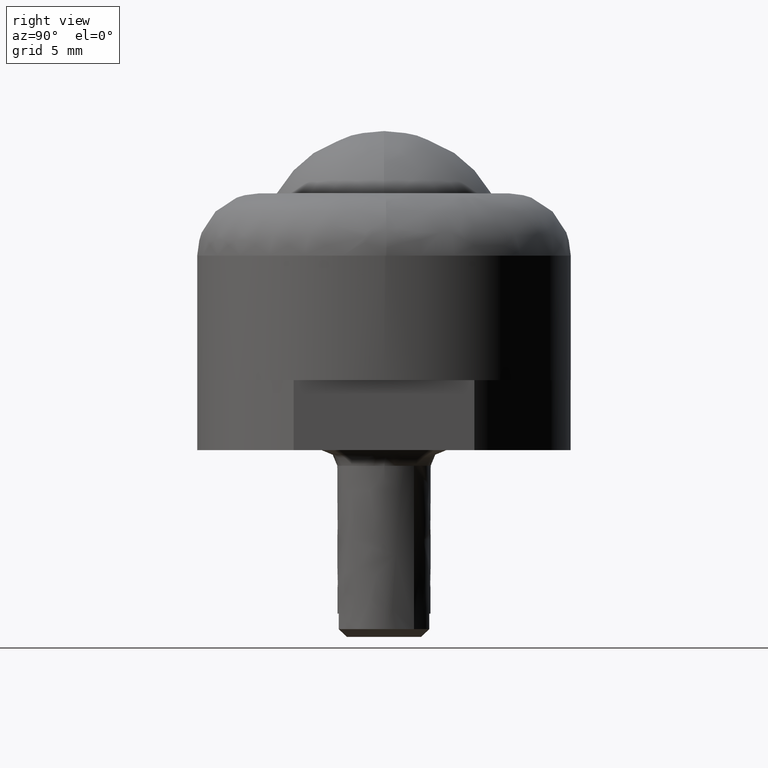
[diagram: clean part render]
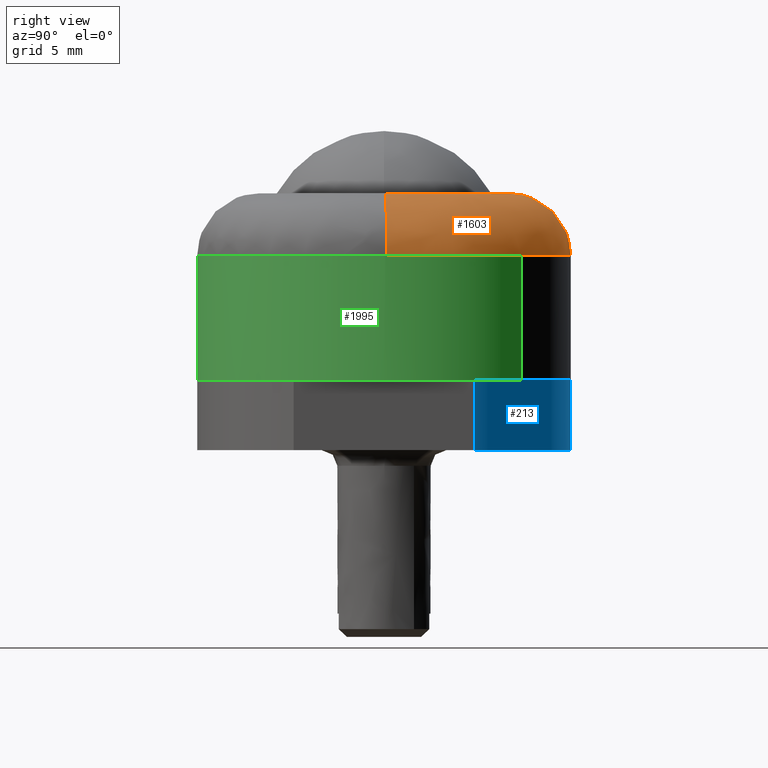
[diagram: same view with three faces highlighted in distinct colors, each labeled with its STEP entity id]
A machine part, right view with three faces highlighted in distinct colors.
Their STEP definitions:

[orange] entity #1603 — the highlighted face is a freeform B-spline surface patch.
#1085=CARTESIAN_POINT('',(-7.999368353892221,-0.100528319144957,12.0));
#1086=VERTEX_POINT('',#1085);
#1087=CARTESIAN_POINT('',(-8.0,0.0,12.0));
#1088=VERTEX_POINT('',#1087);
#1089=CARTESIAN_POINT('',(-7.999368353892221,-0.100528319144957,12.0));
#1090=CARTESIAN_POINT('',(-8.0,0.0,12.0));
#1091=QUASI_UNIFORM_CURVE('',1,(#1089,#1090),.UNSPECIFIED.,.F.,.U.);
#1092=EDGE_CURVE('',#1086,#1088,#1091,.T.);
#1129=CARTESIAN_POINT('',(7.999368353892221,0.100528319144954,12.0));
#1130=VERTEX_POINT('',#1129);
#1136=CARTESIAN_POINT('',(-0.050254546495752,7.999842153478387,12.0));
#1137=VERTEX_POINT('',#1136);
#1138=CARTESIAN_POINT('',(-0.050254546495752,7.999842153478387,12.0));
#1139=CARTESIAN_POINT('',(0.552725265347979,8.003737725940663,12.000000000000011));
#1140=CARTESIAN_POINT('',(1.645341797727045,7.886451184850254,12.0));
#1141=CARTESIAN_POINT('',(3.203138997804838,7.384857147910049,12.000000000000060));
#1142=CARTESIAN_POINT('',(4.537073634139966,6.649182130373442,11.999999999999870));
#1143=CARTESIAN_POINT('',(5.566418681894673,5.788172528518924,12.000000000000171));
#1144=CARTESIAN_POINT('',(6.388714746624632,4.859156229100973,12.000000000000011));
#1145=CARTESIAN_POINT('',(7.110051074094800,3.767783466863614,11.999999999999710));
#1146=CARTESIAN_POINT('',(7.649319051674267,2.483690036617572,12.000000000000210));
#1147=CARTESIAN_POINT('',(7.934964196201919,1.207996199876236,12.000000000000140));
#1148=CARTESIAN_POINT('',(7.994875106357960,0.459033902129113,12.000000000000149));
#1149=CARTESIAN_POINT('',(7.999368353892221,0.100528319144954,12.0));
#1150=B_SPLINE_CURVE_WITH_KNOTS('',3,(#1138,#1139,#1140,#1141,#1142,#1143,#1144,#1145,#1146,#1147,#1148,#1149),.UNSPECIFIED.,.F.,.U.,(4,1,1,1,1,1,1,1,1,4),(0.000000031678704,1.808964911373735,3.275702516557709,4.889115076060451,6.355827813000968,7.284762229358392,8.604823120955924,10.267126596897491,11.440511027028640,12.516114003925789),.UNSPECIFIED.);
#1151=EDGE_CURVE('',#1137,#1130,#1150,.T.);
#1153=CARTESIAN_POINT('',(-8.0,0.0,12.0));
#1154=CARTESIAN_POINT('',(-8.000004948172942,0.325935060617274,12.000000000000011));
#1155=CARTESIAN_POINT('',(-7.956122537105787,1.043001322441303,12.000000000000011));
#1156=CARTESIAN_POINT('',(-7.711694270658398,2.277288822194522,11.999999999999980));
#1157=CARTESIAN_POINT('',(-7.196713438693964,3.606058984561214,12.000000000000060));
#1158=CARTESIAN_POINT('',(-6.498731325746737,4.713746901342297,12.000000000000041));
#1159=CARTESIAN_POINT('',(-5.768259390871919,5.570666490217350,11.999999999999860));
#1160=CARTESIAN_POINT('',(-4.940409090520816,6.335440509424931,11.999999999999870));
#1161=CARTESIAN_POINT('',(-3.959244046307706,6.987922201108036,12.000000000000490));
#1162=CARTESIAN_POINT('',(-2.863039844056806,7.496052312368727,11.999999999999710));
#1163=CARTESIAN_POINT('',(-1.614017375898871,7.881948221844059,12.000000000000339));
#1164=CARTESIAN_POINT('',(-0.636944361807517,7.996263171068017,11.999999999999661));
#1165=CARTESIAN_POINT('',(-0.050254546495752,7.999842153478387,12.0));
#1166=B_SPLINE_CURVE_WITH_KNOTS('',3,(#1153,#1154,#1155,#1156,#1157,#1158,#1159,#1160,#1161,#1162,#1163,#1164,#1165),.UNSPECIFIED.,.F.,.U.,(4,1,1,1,1,1,1,1,1,1,4),(0.000000031692096,0.977808061160173,2.151207938854288,3.764622505710777,5.231362534561422,6.062521637465973,7.138093028569014,8.604837703350157,9.582666511149679,10.756059049839211,12.516135214714669),.UNSPECIFIED.);
#1167=EDGE_CURVE('',#1088,#1137,#1166,.T.);
#1488=CARTESIAN_POINT('',(-7.718529196598320,-0.312893830543620,11.990317465230834));
#1489=CARTESIAN_POINT('',(-7.719877661868584,-0.205592022366045,11.990317465230838));
#1490=CARTESIAN_POINT('',(-7.818275020700975,7.624208830083408,11.990317465230840));
#1491=CARTESIAN_POINT('',(-0.097033095308785,7.721241925392193,11.990317465230842));
#1492=CARTESIAN_POINT('',(7.624208830083405,7.818275020700975,11.990317465230840));
#1493=CARTESIAN_POINT('',(7.722606188915345,-0.011525831712139,11.990317465230836));
#1494=CARTESIAN_POINT('',(7.723954654185163,-0.118827639854217,11.990317465230834));
#1495=CARTESIAN_POINT('',(-12.304852055976754,-0.498814242454885,12.310148516315829));
#1496=CARTESIAN_POINT('',(-12.307001774560517,-0.327754077838840,12.310148516315831));
#1497=CARTESIAN_POINT('',(-12.463866497397222,12.154486859930980,12.310148516315826));
#1498=CARTESIAN_POINT('',(-0.154689818733120,12.309176678664105,12.310148516315829));
#1499=CARTESIAN_POINT('',(12.154486859930980,12.463866497397225,12.310148516315826));
#1500=CARTESIAN_POINT('',(12.311351582766967,-0.018374440314673,12.310148516315831));
#1501=CARTESIAN_POINT('',(12.313501301350017,-0.189434604874128,12.310148516315829));
#1502=CARTESIAN_POINT('',(-11.985158488188402,-0.485854500711660,7.721851499298784));
#1503=CARTESIAN_POINT('',(-11.987252354722848,-0.319238667005388,7.721851499298785));
#1504=CARTESIAN_POINT('',(-12.140041559814556,11.838699945044786,7.721851499298786));
#1505=CARTESIAN_POINT('',(-0.150670807384885,11.989370752429672,7.721851499298785));
#1506=CARTESIAN_POINT('',(11.838699945044786,12.140041559814556,7.721851499298786));
#1507=CARTESIAN_POINT('',(11.991489150135783,-0.017897052179197,7.721851499298784));
#1508=CARTESIAN_POINT('',(11.993583016669541,-0.184512885830349,7.721851499298784));
#1516=(BOUNDED_SURFACE()B_SPLINE_SURFACE(2,2,((#1488,#1495,#1502),(#1489,#1496,#1503),(#1490,#1497,#1504),(#1491,#1498,#1505),(#1492,#1499,#1506),(#1493,#1500,#1507),(#1494,#1501,#1508)),.UNSPECIFIED.,.F.,.F.,.U.)B_SPLINE_SURFACE_WITH_KNOTS((3,1,2,1,3),(3,3),(0.0,0.397324168776849,20.263532600983531,40.129741033190207,40.527065201833302),(0.0,7.290919857939570),.UNSPECIFIED.)GEOMETRIC_REPRESENTATION_ITEM()RATIONAL_B_SPLINE_SURFACE(((0.927077710676894,0.608371547717838,0.927077722429856),(0.921709902958913,0.604849058231110,0.921709914643825),(0.647951709431553,0.425202094466791,0.647951717645915),(0.916342095240933,0.601326568744382,0.916342106857795),(0.647951709431553,0.425202094466791,0.647951717645915),(0.921709902957106,0.604849058229924,0.921709914642018),(0.927077710673279,0.608371547715467,0.927077722426242)))REPRESENTATION_ITEM('')SURFACE());
#1517=ORIENTED_EDGE('',*,*,#1092,.T.);
#1518=ORIENTED_EDGE('',*,*,#1167,.T.);
#1519=ORIENTED_EDGE('',*,*,#1151,.T.);
#1520=CARTESIAN_POINT('',(11.999052530445770,0.150792478602229,8.000000000008434));
#1521=VERTEX_POINT('',#1520);
#1522=CARTESIAN_POINT('',(7.999368353892221,0.100528319144954,12.0));
#1523=CARTESIAN_POINT('',(8.293867376581307,0.104229297820710,12.000044819670331));
#1524=CARTESIAN_POINT('',(8.899224968991172,0.111836846124532,11.932866931046281));
#1525=CARTESIAN_POINT('',(9.676393560765833,0.121603548773085,11.660139632573321));
#1526=CARTESIAN_POINT('',(10.283956909774290,0.129238816888258,11.300933618466070));
#1527=CARTESIAN_POINT('',(10.755321079863769,0.135162465547812,10.918873698441990));
#1528=CARTESIAN_POINT('',(11.210323712480660,0.140880498239472,10.423025380850239));
#1529=CARTESIAN_POINT('',(11.585076810125960,0.145590032447040,9.823051430720179));
#1530=CARTESIAN_POINT('',(11.909138887935880,0.149662530978383,8.998012751552656));
#1531=CARTESIAN_POINT('',(11.999239065481770,0.150794822797592,8.392724338335698));
#1532=CARTESIAN_POINT('',(11.999052530445770,0.150792478602229,8.000000000008434));
#1533=B_SPLINE_CURVE_WITH_KNOTS('',3,(#1522,#1523,#1524,#1525,#1526,#1527,#1528,#1529,#1530,#1531,#1532),.UNSPECIFIED.,.F.,.U.,(4,1,1,1,1,1,1,1,4),(0.000000040816400,0.883569393693604,1.816245364871986,2.454397427879647,2.994369025584622,3.632477867548823,4.466979859326144,5.105125818600332,6.283224731348765),.UNSPECIFIED.);
#1534=EDGE_CURVE('',#1130,#1521,#1533,.T.);
#1535=ORIENTED_EDGE('',*,*,#1534,.T.);
#1536=CARTESIAN_POINT('',(8.150221698485282,8.807603889000667,8.000000000007432));
#1537=VERTEX_POINT('',#1536);
#1538=CARTESIAN_POINT('',(8.150221698485282,8.807603889000667,8.000000000007432));
#1539=CARTESIAN_POINT('',(8.801865369361032,8.204825464917986,8.000000000007617));
#1540=CARTESIAN_POINT('',(9.669791280472060,7.201123945945855,8.000000000007926));
#1541=CARTESIAN_POINT('',(10.689215365056370,5.532117762592463,8.000000000008168));
#1542=CARTESIAN_POINT('',(11.387087414756390,3.949095236758218,8.000000000008386));
#1543=CARTESIAN_POINT('',(11.872094142913051,2.076837940804471,8.000000000008464));
#1544=CARTESIAN_POINT('',(11.991125508042920,0.784789963237322,8.000000000008466));
#1545=CARTESIAN_POINT('',(11.999052530445770,0.150792478602229,8.000000000008434));
#1546=B_SPLINE_CURVE_WITH_KNOTS('',3,(#1538,#1539,#1540,#1541,#1542,#1543,#1544,#1545),.UNSPECIFIED.,.F.,.U.,(4,1,1,1,1,4),(7.575258E-009,2.662996349377484,3.956450962623886,5.858582637813717,7.836816513291883,9.738953560297475),.UNSPECIFIED.);
#1547=EDGE_CURVE('',#1537,#1521,#1546,.T.);
#1548=ORIENTED_EDGE('',*,*,#1547,.F.);
#1549=CARTESIAN_POINT('',(-0.075392312230118,11.999763164298560,8.000000000004217));
#1550=VERTEX_POINT('',#1549);
#1551=CARTESIAN_POINT('',(-0.075392312230118,11.999763164298560,8.000000000004217));
#1552=CARTESIAN_POINT('',(0.606945064905615,12.004107176607640,8.000000000004516));
#1553=CARTESIAN_POINT('',(1.689824917316242,11.918267759421321,8.000000000004894));
#1554=CARTESIAN_POINT('',(3.439344924174850,11.537533129694671,8.000000000005596));
#1555=CARTESIAN_POINT('',(4.880259916894161,11.007402207335620,8.000000000006157));
#1556=CARTESIAN_POINT('',(6.581637579471519,10.091765505994429,8.000000000006825));
#1557=CARTESIAN_POINT('',(7.563119793204696,9.351033927168137,8.000000000007200));
#1558=CARTESIAN_POINT('',(8.150221698485282,8.807603889000667,8.000000000007432));
#1559=B_SPLINE_CURVE_WITH_KNOTS('',3,(#1551,#1552,#1553,#1554,#1555,#1556,#1557,#1558),.UNSPECIFIED.,.F.,.U.,(4,1,1,1,1,4),(6.993941E-009,2.047042842385026,3.247037002283886,5.364664548865002,6.635245302492525,9.035228061272157),.UNSPECIFIED.);
#1560=EDGE_CURVE('',#1550,#1537,#1559,.T.);
#1561=ORIENTED_EDGE('',*,*,#1560,.F.);
#1562=CARTESIAN_POINT('',(-12.0,0.0,8.0));
#1563=VERTEX_POINT('',#1562);
#1564=CARTESIAN_POINT('',(-12.0,0.0,8.0));
#1565=CARTESIAN_POINT('',(-12.000134444139579,0.855599103846524,7.999999999999993));
#1566=CARTESIAN_POINT('',(-11.837205601930490,2.371165602474332,8.000000000000078));
#1567=CARTESIAN_POINT('',(-11.221038810750169,4.388655098168413,8.000000000000275));
#1568=CARTESIAN_POINT('',(-10.439106518992871,5.998100236856683,8.000000000000524));
#1569=CARTESIAN_POINT('',(-9.590417719545549,7.257959614860657,8.000000000000902));
#1570=CARTESIAN_POINT('',(-8.618477872892175,8.391209589268605,8.000000000001181));
#1571=CARTESIAN_POINT('',(-7.427064565197704,9.485039968059846,8.000000000001633));
#1572=CARTESIAN_POINT('',(-5.776064786290380,10.590365603148561,8.000000000002242));
#1573=CARTESIAN_POINT('',(-3.954049130122555,11.388078217135490,8.000000000002752));
#1574=CARTESIAN_POINT('',(-2.005860106194727,11.880660499667870,8.000000000003762));
#1575=CARTESIAN_POINT('',(-0.759854739861921,11.995519878145529,8.000000000003650));
#1576=CARTESIAN_POINT('',(-0.075392312230118,11.999763164298560,8.000000000004217));
#1577=B_SPLINE_CURVE_WITH_KNOTS('',3,(#1564,#1565,#1566,#1567,#1568,#1569,#1570,#1571,#1572,#1573,#1574,#1575,#1576),.UNSPECIFIED.,.F.,.U.,(4,1,1,1,1,1,1,1,1,1,4),(0.000000027637252,2.566773993769193,4.546874344310620,6.306958473408317,7.920376397605272,9.093756888702433,10.780477882935720,12.760577399850069,15.034021809068969,16.720769352811089,18.774192329410621),.UNSPECIFIED.);
#1578=EDGE_CURVE('',#1563,#1550,#1577,.T.);
#1579=ORIENTED_EDGE('',*,*,#1578,.F.);
#1580=CARTESIAN_POINT('',(-11.999052530445770,-0.150792478602229,8.000000000008434));
#1581=VERTEX_POINT('',#1580);
#1582=CARTESIAN_POINT('',(-11.999052530445770,-0.150792478602229,8.000000000008434));
#1583=CARTESIAN_POINT('',(-12.0,0.0,8.0));
#1584=QUASI_UNIFORM_CURVE('',1,(#1582,#1583),.UNSPECIFIED.,.F.,.U.);
#1585=EDGE_CURVE('',#1581,#1563,#1584,.T.);
#1586=ORIENTED_EDGE('',*,*,#1585,.F.);
#1587=CARTESIAN_POINT('',(-7.999368353892221,-0.100528319144957,12.0));
#1588=CARTESIAN_POINT('',(-8.293873071812607,-0.104229369392868,12.000061043505360));
#1589=CARTESIAN_POINT('',(-8.735594835917507,-0.109780500987500,11.950969339753810));
#1590=CARTESIAN_POINT('',(-9.366208439216955,-0.117705442390234,11.772250477943880));
#1591=CARTESIAN_POINT('',(-10.013252004099011,-0.125836859646872,11.490282139504419));
#1592=CARTESIAN_POINT('',(-10.644392822510889,-0.133768426576382,11.039882365443820));
#1593=CARTESIAN_POINT('',(-11.210314917557280,-0.140880387713389,10.423014256801221));
#1594=CARTESIAN_POINT('',(-11.585077720070339,-0.145590043882342,9.823052277347342));
#1595=CARTESIAN_POINT('',(-11.909138415425250,-0.149662525040328,8.998012311419405));
#1596=CARTESIAN_POINT('',(-11.999239230117549,-0.150794824866577,8.392724491944193));
#1597=CARTESIAN_POINT('',(-11.999052530445770,-0.150792478602229,8.000000000008434));
#1598=B_SPLINE_CURVE_WITH_KNOTS('',3,(#1587,#1588,#1589,#1590,#1591,#1592,#1593,#1594,#1595,#1596,#1597),.UNSPECIFIED.,.F.,.U.,(4,1,1,1,1,1,1,1,4),(0.000000040816566,0.883569393693604,1.325366547950353,1.963513288000132,2.994369025584622,3.632477867548823,4.466979859326144,5.105125818600332,6.283224731348765),.UNSPECIFIED.);
#1599=EDGE_CURVE('',#1086,#1581,#1598,.T.);
#1600=ORIENTED_EDGE('',*,*,#1599,.F.);
#1601=EDGE_LOOP('',(#1517,#1518,#1519,#1535,#1548,#1561,#1579,#1586,#1600));
#1602=FACE_OUTER_BOUND('',#1601,.T.);
#1603=ADVANCED_FACE('',(#1602),#1516,.T.);

[blue] entity #213 — the highlighted face is a freeform B-spline surface patch.
#10=CARTESIAN_POINT('',(-10.500000000000000,5.809475019311110,0.0));
#11=VERTEX_POINT('',#10);
#12=CARTESIAN_POINT('',(10.500000000000000,5.809475019311150,0.0));
#13=VERTEX_POINT('',#12);
#14=CARTESIAN_POINT('',(-10.500000000000000,5.809475019311110,0.0));
#15=CARTESIAN_POINT('',(-10.209891866521589,6.333882347705153,0.0));
#16=CARTESIAN_POINT('',(-9.605777958105820,7.255310497847886,0.0));
#17=CARTESIAN_POINT('',(-8.574735666877446,8.436536971816693,0.0));
#18=CARTESIAN_POINT('',(-7.434063438216991,9.462474222188257,0.0));
#19=CARTESIAN_POINT('',(-6.114898151966409,10.371725192057090,0.0));
#20=CARTESIAN_POINT('',(-4.680667959750983,11.085809693708059,0.0));
#21=CARTESIAN_POINT('',(-3.325303309309611,11.554494256123760,0.0));
#22=CARTESIAN_POINT('',(-1.797900846446788,11.903727515335250,0.0));
#23=CARTESIAN_POINT('',(-0.199774788384279,12.043740234641700,0.0));
#24=CARTESIAN_POINT('',(1.731336934046038,11.923038962506309,0.0));
#25=CARTESIAN_POINT('',(3.625316272608648,11.506668311562040,0.0));
#26=CARTESIAN_POINT('',(5.445085802727597,10.747134679412611,0.0));
#27=CARTESIAN_POINT('',(7.010314481782009,9.788819024922605,0.0));
#28=CARTESIAN_POINT('',(8.193990404904124,8.810152229362334,0.0));
#29=CARTESIAN_POINT('',(9.427722369476099,7.499224327386478,0.0));
#30=CARTESIAN_POINT('',(10.113244700389069,6.508732446286602,0.0));
#31=CARTESIAN_POINT('',(10.500000000000000,5.809475019311150,0.0));
#32=B_SPLINE_CURVE_WITH_KNOTS('',3,(#14,#15,#16,#17,#18,#19,#20,#21,#22,#23,#24,#25,#26,#27,#28,#29,#30,#31),.UNSPECIFIED.,.F.,.U.,(4,1,1,1,1,1,1,1,1,1,1,1,1,1,1,4),(8.897835E-009,1.797912602711968,3.296186892936774,4.694584629038069,6.392633846683260,8.090678238406341,9.489080168373040,10.687689903769240,12.785267025864950,14.283531010625399,16.481004867715448,18.578590696181990,20.176752487453491,21.974690458298308,23.173300524347361,25.570533412326530),.UNSPECIFIED.);
#33=EDGE_CURVE('',#11,#13,#32,.T.);
#79=CARTESIAN_POINT('',(-10.500000000000000,5.809475019311110,-4.499999999999949));
#80=VERTEX_POINT('',#79);
#94=CARTESIAN_POINT('',(-10.500000000000000,5.809475019311110,0.0));
#95=CARTESIAN_POINT('',(-10.500000000000000,5.809475019311110,-4.499999999999949));
#96=QUASI_UNIFORM_CURVE('',1,(#94,#95),.UNSPECIFIED.,.F.,.U.);
#97=EDGE_CURVE('',#11,#80,#96,.T.);
#155=CARTESIAN_POINT('',(10.500000000000000,5.809475019311150,-4.499999999999949));
#156=VERTEX_POINT('',#155);
#162=CARTESIAN_POINT('',(10.500000000000000,5.809475019311150,0.0));
#163=CARTESIAN_POINT('',(10.500000000000000,5.809475019311150,-4.499999999999949));
#164=QUASI_UNIFORM_CURVE('',1,(#162,#163),.UNSPECIFIED.,.F.,.U.);
#165=EDGE_CURVE('',#13,#156,#164,.T.);
#172=CARTESIAN_POINT('',(10.735005993270430,5.362802096334286,0.112499999999999));
#173=CARTESIAN_POINT('',(10.735005993270430,5.362802096334286,-4.615312499999948));
#174=CARTESIAN_POINT('',(-0.508342414975918,27.869210197698635,0.112499999999999));
#175=CARTESIAN_POINT('',(-0.508342414975918,27.869210197698635,-4.615312499999948));
#176=CARTESIAN_POINT('',(-10.923438160866510,4.967745841498481,0.112499999999999));
#177=CARTESIAN_POINT('',(-10.923438160866510,4.967745841498481,-4.615312499999948));
#185=(BOUNDED_SURFACE()B_SPLINE_SURFACE(1,2,((#172,#174,#176),(#173,#175,#177)),.UNSPECIFIED.,.F.,.F.,.U.)B_SPLINE_SURFACE_WITH_KNOTS((2,2),(3,3),(0.0,4.727812499999947),(0.0,30.285744546446690),.UNSPECIFIED.)GEOMETRIC_REPRESENTATION_ITEM()RATIONAL_B_SPLINE_SURFACE(((1.0,0.430511096808295,1.0),(1.0,0.430511096808295,1.0)))REPRESENTATION_ITEM('')SURFACE());
#186=CARTESIAN_POINT('',(-10.500000000000000,5.809475019311110,-4.499999999999949));
#187=CARTESIAN_POINT('',(-10.209891868691580,6.333882352228954,-4.499999999999949));
#188=CARTESIAN_POINT('',(-9.605777944512733,7.255310469505210,-4.499999999999951));
#189=CARTESIAN_POINT('',(-8.574735707625033,8.436537060031220,-4.499999999999948));
#190=CARTESIAN_POINT('',(-7.434063319020019,9.462473951070864,-4.499999999999963));
#191=CARTESIAN_POINT('',(-6.114898456270278,10.371725912808380,-4.499999999999920));
#192=CARTESIAN_POINT('',(-4.680667396424663,11.085808602596350,-4.500000000000016));
#193=CARTESIAN_POINT('',(-3.325304872285918,11.554505568050651,-4.499999999999830));
#194=CARTESIAN_POINT('',(-2.057877435176815,11.844239126435101,-4.500000000000173));
#195=CARTESIAN_POINT('',(-0.833143874284101,11.992776339891220,-4.499999999999695));
#196=CARTESIAN_POINT('',(0.633451308731627,12.017222630824570,-4.500000000000363));
#197=CARTESIAN_POINT('',(2.126921809187940,11.848697464337430,-4.499999999999730));
#198=CARTESIAN_POINT('',(3.872054284301777,11.403633392725670,-4.500000000000074));
#199=CARTESIAN_POINT('',(5.445087277595493,10.747143966663151,-4.499999999999779));
#200=CARTESIAN_POINT('',(7.010314338339438,9.788818207950785,-4.500000000000004));
#201=CARTESIAN_POINT('',(8.193990405079218,8.810152231477940,-4.499999999999934));
#202=CARTESIAN_POINT('',(9.427722369384579,7.499224326280670,-4.499999999999961));
#203=CARTESIAN_POINT('',(10.113244700419550,6.508732446654804,-4.499999999999949));
#204=CARTESIAN_POINT('',(10.500000000000000,5.809475019311150,-4.499999999999949));
#205=B_SPLINE_CURVE_WITH_KNOTS('',3,(#186,#187,#188,#189,#190,#191,#192,#193,#194,#195,#196,#197,#198,#199,#200,#201,#202,#203,#204),.UNSPECIFIED.,.F.,.U.,(4,1,1,1,1,1,1,1,1,1,1,1,1,1,1,1,4),(8.897835E-009,1.797912602711968,3.296186892936774,4.694584629038069,6.392633846683260,8.090678238406341,9.489080168373040,10.687689903769240,11.986194627532001,13.184805067821051,15.082602067928160,16.481004867715448,18.578590696181990,20.176752487453491,21.974690458298308,23.173300524347361,25.570533412326530),.UNSPECIFIED.);
#206=EDGE_CURVE('',#80,#156,#205,.T.);
#207=ORIENTED_EDGE('',*,*,#206,.F.);
#208=ORIENTED_EDGE('',*,*,#97,.F.);
#209=ORIENTED_EDGE('',*,*,#33,.T.);
#210=ORIENTED_EDGE('',*,*,#165,.T.);
#211=EDGE_LOOP('',(#207,#208,#209,#210));
#212=FACE_OUTER_BOUND('',#211,.T.);
#213=ADVANCED_FACE('',(#212),#185,.T.);

[green] entity #1995 — the highlighted face is a freeform B-spline surface patch.
#1520=CARTESIAN_POINT('',(11.999052530445770,0.150792478602229,8.000000000008434));
#1521=VERTEX_POINT('',#1520);
#1536=CARTESIAN_POINT('',(8.150221698485282,8.807603889000667,8.000000000007432));
#1537=VERTEX_POINT('',#1536);
#1538=CARTESIAN_POINT('',(8.150221698485282,8.807603889000667,8.000000000007432));
#1539=CARTESIAN_POINT('',(8.801865369361032,8.204825464917986,8.000000000007617));
#1540=CARTESIAN_POINT('',(9.669791280472060,7.201123945945855,8.000000000007926));
#1541=CARTESIAN_POINT('',(10.689215365056370,5.532117762592463,8.000000000008168));
#1542=CARTESIAN_POINT('',(11.387087414756390,3.949095236758218,8.000000000008386));
#1543=CARTESIAN_POINT('',(11.872094142913051,2.076837940804471,8.000000000008464));
#1544=CARTESIAN_POINT('',(11.991125508042920,0.784789963237322,8.000000000008466));
#1545=CARTESIAN_POINT('',(11.999052530445770,0.150792478602229,8.000000000008434));
#1546=B_SPLINE_CURVE_WITH_KNOTS('',3,(#1538,#1539,#1540,#1541,#1542,#1543,#1544,#1545),.UNSPECIFIED.,.F.,.U.,(4,1,1,1,1,4),(7.575258E-009,2.662996349377484,3.956450962623886,5.858582637813717,7.836816513291883,9.738953560297475),.UNSPECIFIED.);
#1547=EDGE_CURVE('',#1537,#1521,#1546,.T.);
#1636=CARTESIAN_POINT('',(-8.150221698485282,-8.807603889000667,8.000000000007432));
#1637=VERTEX_POINT('',#1636);
#1650=CARTESIAN_POINT('',(0.075392312230105,-11.999763164298560,8.000000000004217));
#1651=VERTEX_POINT('',#1650);
#1652=CARTESIAN_POINT('',(0.075392312230105,-11.999763164298560,8.000000000004217));
#1653=CARTESIAN_POINT('',(-0.795186090195909,-12.005392381805660,8.000000000004569));
#1654=CARTESIAN_POINT('',(-2.184264944137027,-11.862189072661710,8.000000000005121));
#1655=CARTESIAN_POINT('',(-3.976429487211712,-11.354418349579531,8.000000000005787));
#1656=CARTESIAN_POINT('',(-5.300924261185770,-10.795058950787450,8.000000000006295));
#1657=CARTESIAN_POINT('',(-6.716627360257607,-9.995167549242201,8.000000000006965));
#1658=CARTESIAN_POINT('',(-7.632177275868338,-9.287081681087750,8.000000000007153));
#1659=CARTESIAN_POINT('',(-8.150221698485282,-8.807603889000667,8.000000000007432));
#1660=B_SPLINE_CURVE_WITH_KNOTS('',3,(#1652,#1653,#1654,#1655,#1656,#1657,#1658,#1659),.UNSPECIFIED.,.F.,.U.,(4,1,1,1,1,4),(6.991010E-009,2.611746431075273,4.164683928651727,5.576427737897463,6.917596792911516,9.035228061272170),.UNSPECIFIED.);
#1661=EDGE_CURVE('',#1651,#1637,#1660,.T.);
#1663=CARTESIAN_POINT('',(12.0,0.0,8.0));
#1664=VERTEX_POINT('',#1663);
#1665=CARTESIAN_POINT('',(12.0,0.0,8.0));
#1666=CARTESIAN_POINT('',(12.000013210793661,-0.562243867192814,7.999999999999968));
#1667=CARTESIAN_POINT('',(11.908832652178830,-1.857864964773630,8.000000000000073));
#1668=CARTESIAN_POINT('',(11.490767756394240,-3.625675988771066,8.000000000000140));
#1669=CARTESIAN_POINT('',(10.860366915811380,-5.167516649197017,8.000000000000478));
#1670=CARTESIAN_POINT('',(10.162663360188890,-6.432044139439327,8.000000000000600));
#1671=CARTESIAN_POINT('',(9.208690035091976,-7.767537825316636,8.000000000001016));
#1672=CARTESIAN_POINT('',(7.871901986039660,-9.137699783604202,8.000000000001498));
#1673=CARTESIAN_POINT('',(6.258510747329856,-10.298092687694529,8.000000000001984));
#1674=CARTESIAN_POINT('',(4.680767337890022,-11.088872803744950,8.000000000002691));
#1675=CARTESIAN_POINT('',(3.267495606283610,-11.573235337925411,8.000000000002904));
#1676=CARTESIAN_POINT('',(1.761553637574743,-11.905443538995090,8.000000000003947));
#1677=CARTESIAN_POINT('',(0.710962822248221,-11.995817576426161,8.000000000003579));
#1678=CARTESIAN_POINT('',(0.075392312230105,-11.999763164298560,8.000000000004217));
#1679=B_SPLINE_CURVE_WITH_KNOTS('',3,(#1665,#1666,#1667,#1668,#1669,#1670,#1671,#1672,#1673,#1674,#1675,#1676,#1677,#1678),.UNSPECIFIED.,.F.,.U.,(4,1,1,1,1,1,1,1,1,1,1,4),(0.000000027643509,1.686738589220088,3.886844239705173,5.426918062563269,6.673647725926747,8.213725566872110,10.340458199293030,12.393900028449981,14.153981193662190,15.620721926771051,16.867451769288930,18.774192329410631),.UNSPECIFIED.);
#1680=EDGE_CURVE('',#1664,#1651,#1679,.T.);
#1682=CARTESIAN_POINT('',(11.999052530445770,0.150792478602229,8.000000000008434));
#1683=CARTESIAN_POINT('',(12.0,0.0,8.0));
#1684=QUASI_UNIFORM_CURVE('',1,(#1682,#1683),.UNSPECIFIED.,.F.,.U.);
#1685=EDGE_CURVE('',#1521,#1664,#1684,.T.);
#1865=CARTESIAN_POINT('',(8.150221790466301,8.807603948089806,-2.220446E-016));
#1866=VERTEX_POINT('',#1865);
#1867=CARTESIAN_POINT('',(8.150221698485282,8.807603889000667,8.000000000007432));
#1868=CARTESIAN_POINT('',(8.150221790466301,8.807603948089806,-2.220446E-016));
#1869=QUASI_UNIFORM_CURVE('',1,(#1867,#1868),.UNSPECIFIED.,.F.,.U.);
#1870=EDGE_CURVE('',#1537,#1866,#1869,.T.);
#1903=CARTESIAN_POINT('',(-8.150221790466237,-8.807603948089739,1.165734E-015));
#1904=VERTEX_POINT('',#1903);
#1917=CARTESIAN_POINT('',(-8.150221698485282,-8.807603889000667,8.000000000007432));
#1918=CARTESIAN_POINT('',(-8.150221790466237,-8.807603948089739,1.165734E-015));
#1919=QUASI_UNIFORM_CURVE('',1,(#1917,#1918),.UNSPECIFIED.,.F.,.U.);
#1920=EDGE_CURVE('',#1637,#1904,#1919,.T.);
#1925=CARTESIAN_POINT('',(8.150221714002585,8.807603874641542,8.200000000008645));
#1926=CARTESIAN_POINT('',(16.957825588644127,0.657382160638956,8.200000000008645));
#1927=CARTESIAN_POINT('',(8.807603874641542,-8.150221714002585,8.200000000008645));
#1928=CARTESIAN_POINT('',(0.657382160638956,-16.957825588644127,8.200000000008645));
#1929=CARTESIAN_POINT('',(-8.150221714002585,-8.807603874641542,8.200000000008645));
#1930=CARTESIAN_POINT('',(8.150221714002585,8.807603874641542,-0.205000000000217));
#1931=CARTESIAN_POINT('',(16.957825588644127,0.657382160638956,-0.205000000000217));
#1932=CARTESIAN_POINT('',(8.807603874641542,-8.150221714002585,-0.205000000000217));
#1933=CARTESIAN_POINT('',(0.657382160638956,-16.957825588644127,-0.205000000000217));
#1934=CARTESIAN_POINT('',(-8.150221714002585,-8.807603874641542,-0.205000000000217));
#1942=(BOUNDED_SURFACE()B_SPLINE_SURFACE(2,1,((#1925,#1930),(#1926,#1931),(#1927,#1932),(#1928,#1933),(#1929,#1934)),.UNSPECIFIED.,.F.,.F.,.U.)B_SPLINE_SURFACE_WITH_KNOTS((3,2,3),(2,2),(0.0,19.882250993908560,39.764501987817120),(0.0,8.405000000008863),.UNSPECIFIED.)GEOMETRIC_REPRESENTATION_ITEM()RATIONAL_B_SPLINE_SURFACE(((1.0,1.0),(0.707106781186548,0.707106781186548),(1.0,1.0),(0.707106781186548,0.707106781186548),(1.0,1.0)))REPRESENTATION_ITEM('')SURFACE());
#1943=ORIENTED_EDGE('',*,*,#1661,.T.);
#1944=ORIENTED_EDGE('',*,*,#1920,.T.);
#1945=CARTESIAN_POINT('',(-0.000000424640475,-11.999999999999989,0.0));
#1946=VERTEX_POINT('',#1945);
#1947=CARTESIAN_POINT('',(-0.000000424640475,-11.999999999999989,0.0));
#1948=CARTESIAN_POINT('',(-0.559989549526593,-12.000021314218021,8.009579E-017));
#1949=CARTESIAN_POINT('',(-1.703296835778723,-11.919835386218990,2.436242E-016));
#1950=CARTESIAN_POINT('',(-3.281096403955418,-11.578743597368661,4.692984E-016));
#1951=CARTESIAN_POINT('',(-4.667217230851025,-11.081897449862270,6.675566E-016));
#1952=CARTESIAN_POINT('',(-5.842543570382786,-10.506894257896640,8.356647E-016));
#1953=CARTESIAN_POINT('',(-7.010529221714192,-9.774647636245117,1.002723E-015));
#1954=CARTESIAN_POINT('',(-7.756349160911050,-9.172109620016737,1.109398E-015));
#1955=CARTESIAN_POINT('',(-8.150221790466237,-8.807603948089739,1.165734E-015));
#1956=B_SPLINE_CURVE_WITH_KNOTS('',3,(#1947,#1948,#1949,#1950,#1951,#1952,#1953,#1954,#1955),.UNSPECIFIED.,.F.,.U.,(4,1,1,1,1,1,4),(6.703901E-009,1.679967761122057,3.429938700901970,4.829902549299511,6.089884591695366,7.349867269552805,8.959834571931850),.UNSPECIFIED.);
#1957=EDGE_CURVE('',#1946,#1904,#1956,.T.);
#1958=ORIENTED_EDGE('',*,*,#1957,.F.);
#1959=CARTESIAN_POINT('',(12.0,0.0,0.0));
#1960=VERTEX_POINT('',#1959);
#1961=CARTESIAN_POINT('',(12.0,0.0,0.0));
#1962=CARTESIAN_POINT('',(12.000196957817240,-0.908134058049139,0.0));
#1963=CARTESIAN_POINT('',(11.823583459964579,-2.454295356356978,0.0));
#1964=CARTESIAN_POINT('',(11.132056040644240,-4.637227458868311,0.0));
#1965=CARTESIAN_POINT('',(10.280702820225420,-6.278096103959096,0.0));
#1966=CARTESIAN_POINT('',(9.181467014905289,-7.789049708862530,0.0));
#1967=CARTESIAN_POINT('',(7.878467044832181,-9.132763289154333,0.0));
#1968=CARTESIAN_POINT('',(6.380250271656077,-10.215626158825170,0.0));
#1969=CARTESIAN_POINT('',(4.940147312092169,-10.962725108674830,0.0));
#1970=CARTESIAN_POINT('',(3.472381579986751,-11.528978274166191,0.0));
#1971=CARTESIAN_POINT('',(1.816230957948852,-11.911546762565560,0.0));
#1972=CARTESIAN_POINT('',(0.564499305697243,-12.000017566900061,0.0));
#1973=CARTESIAN_POINT('',(-0.000000424640475,-11.999999999999989,0.0));
#1974=B_SPLINE_CURVE_WITH_KNOTS('',3,(#1961,#1962,#1963,#1964,#1965,#1966,#1967,#1968,#1969,#1970,#1971,#1972,#1973),.UNSPECIFIED.,.F.,.U.,(4,1,1,1,1,1,1,1,1,1,4),(0.000000028142068,2.724353194175286,4.638765261947237,6.847704532368789,8.246710427877719,10.234728544002220,12.443671401027050,13.769031501472149,15.094395422053200,17.156082070384699,18.849585730355962),.UNSPECIFIED.);
#1975=EDGE_CURVE('',#1960,#1946,#1974,.T.);
#1976=ORIENTED_EDGE('',*,*,#1975,.F.);
#1977=CARTESIAN_POINT('',(8.150221790466301,8.807603948089806,-2.220446E-016));
#1978=CARTESIAN_POINT('',(8.679562158482568,8.317879687554338,-2.096984E-016));
#1979=CARTESIAN_POINT('',(9.493583780166008,7.415371279414775,-1.869456E-016));
#1980=CARTESIAN_POINT('',(10.416485916760530,6.014952712918708,-1.516403E-016));
#1981=CARTESIAN_POINT('',(11.027870261388710,4.791977866790510,-1.208084E-016));
#1982=CARTESIAN_POINT('',(11.501832738279809,3.509985673095974,-8.848870E-017));
#1983=CARTESIAN_POINT('',(11.890541189572410,1.931568129383916,-4.869591E-017));
#1984=CARTESIAN_POINT('',(12.000078009052990,0.721131452726422,-1.818013E-017));
#1985=CARTESIAN_POINT('',(12.0,0.0,0.0));
#1986=B_SPLINE_CURVE_WITH_KNOTS('',3,(#1977,#1978,#1979,#1980,#1981,#1982,#1983,#1984,#1985),.UNSPECIFIED.,.F.,.U.,(4,1,1,1,1,1,4),(8.176301E-009,2.163381498022419,3.631398481030074,5.022130228604587,6.258352320607454,7.726369303615130,9.889750793459740),.UNSPECIFIED.);
#1987=EDGE_CURVE('',#1866,#1960,#1986,.T.);
#1988=ORIENTED_EDGE('',*,*,#1987,.F.);
#1989=ORIENTED_EDGE('',*,*,#1870,.F.);
#1990=ORIENTED_EDGE('',*,*,#1547,.T.);
#1991=ORIENTED_EDGE('',*,*,#1685,.T.);
#1992=ORIENTED_EDGE('',*,*,#1680,.T.);
#1993=EDGE_LOOP('',(#1943,#1944,#1958,#1976,#1988,#1989,#1990,#1991,#1992));
#1994=FACE_OUTER_BOUND('',#1993,.T.);
#1995=ADVANCED_FACE('',(#1994),#1942,.T.);